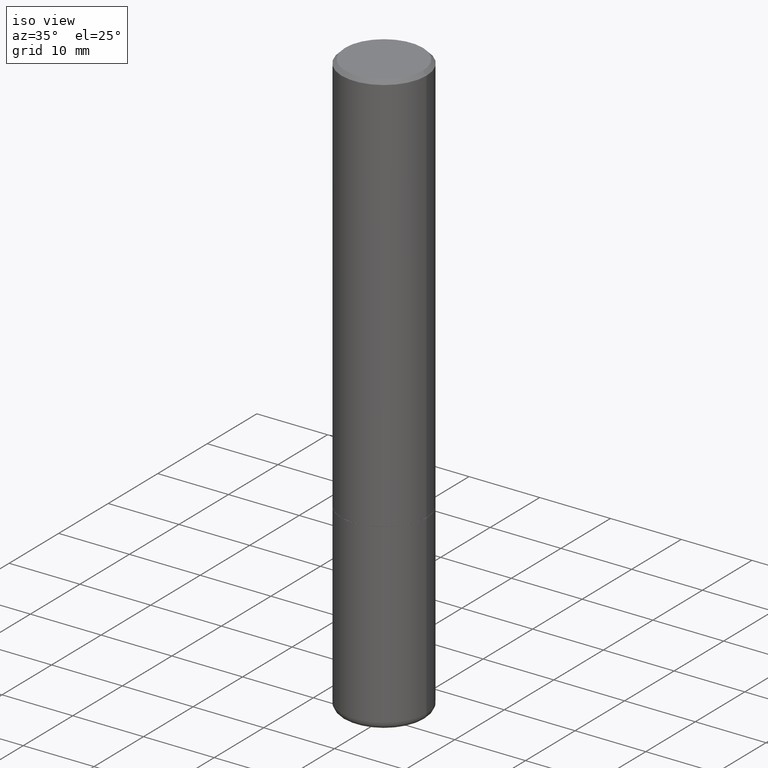
[diagram: clean part render]
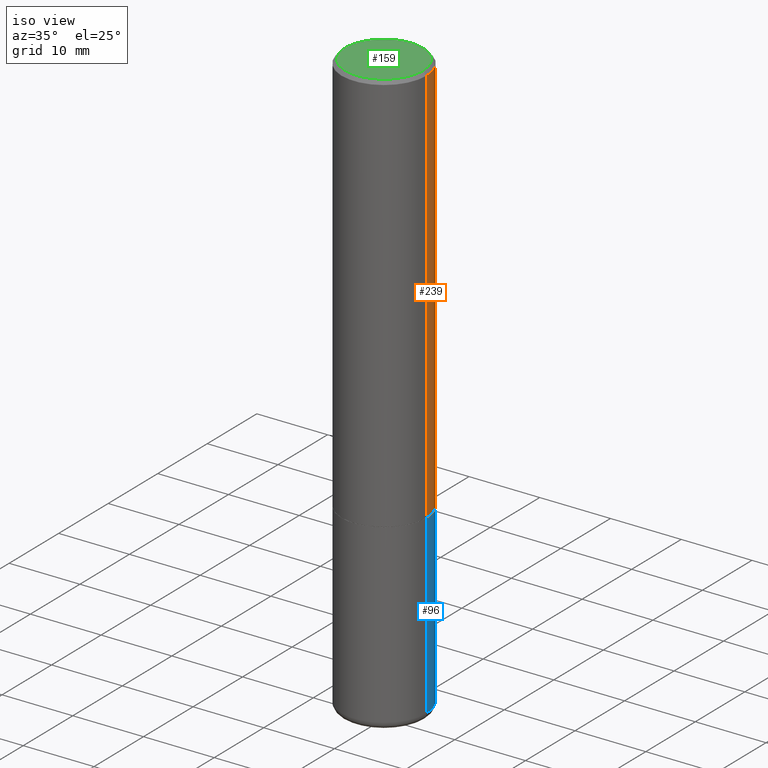
[diagram: same view with three faces highlighted in distinct colors, each labeled with its STEP entity id]
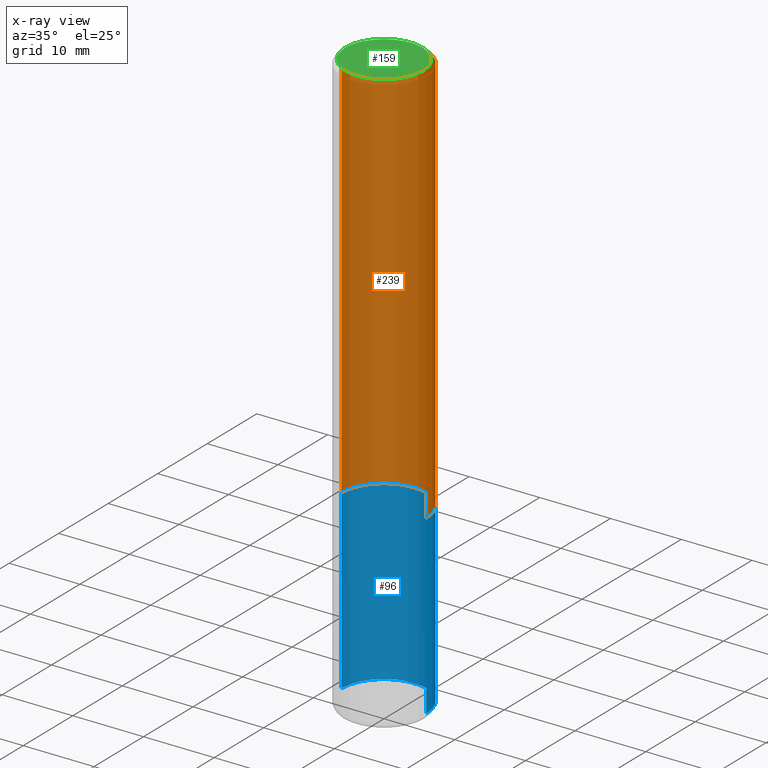
[diagram: x-ray of the same camera — body ghosted, the three highlighted faces saturated]
A machine part, iso view with three faces highlighted in distinct colors.
The next image is the same camera in x-ray (body ghosted, the three faces saturated) — at least one of them is partly hidden behind the body in this view.
Their STEP definitions:

[orange] entity #239 — the highlighted cylindrical surface (partial cylindrical patch) has radius 5.9995 mm, axis along (-0, 0, 1).
#22 = DIRECTION ( 'NONE',  ( -2.445468806185136597E-29, 3.491481338843145583E-15, 1.000000000000000000 ) ) ;
#37 = CARTESIAN_POINT ( 'NONE',  ( 5.485431079153880270E-29, -7.831741791159060910E-15, -2.243100000000000094 ) ) ;
#39 = DIRECTION ( 'NONE',  ( -2.445468806185136597E-29, 3.491481338843145583E-15, 1.000000000000000000 ) ) ;
#47 = CARTESIAN_POINT ( 'NONE',  ( 0.000000000000000000, 0.000000000000000000, 0.000000000000000000 ) ) ;
#64 = DIRECTION ( 'NONE',  ( -2.445468806185136597E-29, 3.491481338843145583E-15, 1.000000000000000000 ) ) ;
#71 = DIRECTION ( 'NONE',  ( -2.445468806185136877E-29, 3.491481338843145188E-15, 1.000000000000000000 ) ) ;
#84 = VERTEX_POINT ( 'NONE', #199 ) ;
#86 = CARTESIAN_POINT ( 'NONE',  ( -0.2362000000000002986, -2.272483767102600582E-15, -2.243100000000000094 ) ) ;
#89 = EDGE_CURVE ( 'NONE', #287, #84, #196, .T. ) ;
#99 = EDGE_CURVE ( 'NONE', #381, #84, #307, .T. ) ;
#105 = EDGE_CURVE ( 'NONE', #272, #287, #189, .T. ) ;
#110 = ORIENTED_EDGE ( 'NONE', *, *, #377, .F. ) ;
#122 = AXIS2_PLACEMENT_3D ( 'NONE', #166, #64, #326 ) ;
#128 = VECTOR ( 'NONE', #71, 39.37007874015748143 ) ;
#130 = DIRECTION ( 'NONE',  ( 1.000000000000000000, -6.982962677686269077E-15, 0.000000000000000000 ) ) ;
#148 = CARTESIAN_POINT ( 'NONE',  ( 0.2362000000000002709, -9.481117575628559013E-15, -2.243100000000000094 ) ) ;
#154 = CARTESIAN_POINT ( 'NONE',  ( 0.2361999999999999933, -1.690279253850498771E-15, -0.02000000000000005246 ) ) ;
#164 = AXIS2_PLACEMENT_3D ( 'NONE', #47, #22, #281 ) ;
#166 = CARTESIAN_POINT ( 'NONE',  ( 4.890937612370285420E-31, -6.982962677686308865E-17, -0.02000000000000005246 ) ) ;
#170 = CARTESIAN_POINT ( 'NONE',  ( -0.2362000000000001321, 1.678301941865357577E-15, -1.161852468318209457E-29 ) ) ;
#172 = ORIENTED_EDGE ( 'NONE', *, *, #89, .T. ) ;
#174 = AXIS2_PLACEMENT_3D ( 'NONE', #37, #39, #130 ) ;
#189 = CIRCLE ( 'NONE', #174, 0.2362000000000002709 ) ;
#196 = LINE ( 'NONE', #170, #128 ) ;
#199 = CARTESIAN_POINT ( 'NONE',  ( -0.2361999999999999933, 1.579546157692633030E-15, -0.02000000000000005246 ) ) ;
#215 = FACE_OUTER_BOUND ( 'NONE', #354, .T. ) ;
#236 = CYLINDRICAL_SURFACE ( 'NONE', #164, 0.2362000000000001321 ) ;
#239 = ADVANCED_FACE ( 'NONE', ( #215 ), #236, .T. ) ;
#272 = VERTEX_POINT ( 'NONE', #148 ) ;
#279 = DIRECTION ( 'NONE',  ( -2.445468806185136877E-29, 3.491481338843145188E-15, 1.000000000000000000 ) ) ;
#281 = DIRECTION ( 'NONE',  ( 1.000000000000000000, -6.982962677686266711E-15, 4.876176775795936353E-29 ) ) ;
#284 = VECTOR ( 'NONE', #279, 39.37007874015748143 ) ;
#287 = VERTEX_POINT ( 'NONE', #86 ) ;
#307 = CIRCLE ( 'NONE', #122, 0.2361999999999999933 ) ;
#326 = DIRECTION ( 'NONE',  ( 1.000000000000000000, -6.982962677686266711E-15, 0.000000000000000000 ) ) ;
#354 = EDGE_LOOP ( 'NONE', ( #410, #172, #376, #110 ) ) ;
#375 = CARTESIAN_POINT ( 'NONE',  ( 0.2362000000000001321, -1.649375784469497117E-15, 1.151752954443000789E-29 ) ) ;
#376 = ORIENTED_EDGE ( 'NONE', *, *, #99, .F. ) ;
#377 = EDGE_CURVE ( 'NONE', #272, #381, #399, .T. ) ;
#381 = VERTEX_POINT ( 'NONE', #154 ) ;
#399 = LINE ( 'NONE', #375, #284 ) ;
#410 = ORIENTED_EDGE ( 'NONE', *, *, #105, .T. ) ;

[blue] entity #96 — the highlighted cylindrical surface (partial cylindrical patch) has radius 5.9995 mm, axis along (-0, 0, 1).
#13 = DIRECTION ( 'NONE',  ( 1.000000000000000000, -6.982962677686269077E-15, 0.000000000000000000 ) ) ;
#29 = ORIENTED_EDGE ( 'NONE', *, *, #112, .T. ) ;
#40 = CYLINDRICAL_SURFACE ( 'NONE', #276, 0.2361999999999999933 ) ;
#48 = ORIENTED_EDGE ( 'NONE', *, *, #382, .F. ) ;
#50 = EDGE_LOOP ( 'NONE', ( #274, #29, #206, #48 ) ) ;
#61 = LINE ( 'NONE', #167, #208 ) ;
#74 = VERTEX_POINT ( 'NONE', #356 ) ;
#79 = EDGE_CURVE ( 'NONE', #74, #246, #311, .T. ) ;
#96 = ADVANCED_FACE ( 'NONE', ( #332 ), #40, .T. ) ;
#101 = DIRECTION ( 'NONE',  ( -2.445468806185136597E-29, 3.491481338843145583E-15, 1.000000000000000000 ) ) ;
#107 = LINE ( 'NONE', #309, #204 ) ;
#112 = EDGE_CURVE ( 'NONE', #246, #205, #61, .T. ) ;
#116 = CARTESIAN_POINT ( 'NONE',  ( 0.2361999999999999933, -9.484609056967400443E-15, -2.244100000000000428 ) ) ;
#167 = CARTESIAN_POINT ( 'NONE',  ( -0.2361999999999999933, 1.678301941865356591E-15, -1.161852468318208757E-29 ) ) ;
#202 = DIRECTION ( 'NONE',  ( -2.445468806185136877E-29, 3.491481338843145188E-15, 1.000000000000000000 ) ) ;
#204 = VECTOR ( 'NONE', #367, 39.37007874015748143 ) ;
#205 = VERTEX_POINT ( 'NONE', #362 ) ;
#206 = ORIENTED_EDGE ( 'NONE', *, *, #334, .F. ) ;
#208 = VECTOR ( 'NONE', #202, 39.37007874015748143 ) ;
#219 = DIRECTION ( 'NONE',  ( -2.445468806185136597E-29, 3.491481338843145583E-15, 1.000000000000000000 ) ) ;
#246 = VERTEX_POINT ( 'NONE', #310 ) ;
#248 = CIRCLE ( 'NONE', #300, 0.2361999999999999933 ) ;
#274 = ORIENTED_EDGE ( 'NONE', *, *, #79, .T. ) ;
#276 = AXIS2_PLACEMENT_3D ( 'NONE', #390, #330, #329 ) ;
#300 = AXIS2_PLACEMENT_3D ( 'NONE', #312, #219, #13 ) ;
#303 = CARTESIAN_POINT ( 'NONE',  ( 7.894706947007477118E-29, -1.127154920618732880E-14, -3.228299999999999947 ) ) ;
#309 = CARTESIAN_POINT ( 'NONE',  ( 0.2361999999999999933, -1.649375784469496131E-15, 1.151752954443000088E-29 ) ) ;
#310 = CARTESIAN_POINT ( 'NONE',  ( -0.2362000000000000210, -9.593247264321970832E-15, -3.228299999999999947 ) ) ;
#311 = CIRCLE ( 'NONE', #415, 0.2361999999999999933 ) ;
#312 = CARTESIAN_POINT ( 'NONE',  ( 5.487876547960065873E-29, -7.835233272497903917E-15, -2.244100000000000428 ) ) ;
#323 = VERTEX_POINT ( 'NONE', #116 ) ;
#329 = DIRECTION ( 'NONE',  ( 1.000000000000000000, -6.982962677686266711E-15, 4.876176775795936353E-29 ) ) ;
#330 = DIRECTION ( 'NONE',  ( -2.445468806185136597E-29, 3.491481338843145583E-15, 1.000000000000000000 ) ) ;
#332 = FACE_OUTER_BOUND ( 'NONE', #50, .T. ) ;
#334 = EDGE_CURVE ( 'NONE', #323, #205, #248, .T. ) ;
#355 = DIRECTION ( 'NONE',  ( 1.000000000000000000, -6.982962677686265133E-15, 0.000000000000000000 ) ) ;
#356 = CARTESIAN_POINT ( 'NONE',  ( 0.2362000000000000210, -1.292092499065682375E-14, -3.228299999999999947 ) ) ;
#362 = CARTESIAN_POINT ( 'NONE',  ( -0.2361999999999999933, -7.875089297477259967E-15, -2.244100000000000428 ) ) ;
#367 = DIRECTION ( 'NONE',  ( -2.445468806185136877E-29, 3.491481338843145188E-15, 1.000000000000000000 ) ) ;
#382 = EDGE_CURVE ( 'NONE', #74, #323, #107, .T. ) ;
#390 = CARTESIAN_POINT ( 'NONE',  ( 0.000000000000000000, 0.000000000000000000, 0.000000000000000000 ) ) ;
#415 = AXIS2_PLACEMENT_3D ( 'NONE', #303, #101, #355 ) ;

[green] entity #159 — the highlighted planar face has unit normal (0, -0, -1).
#9 = CARTESIAN_POINT ( 'NONE',  ( 0.2161999999999998368, -1.586759460484351002E-15, 1.451294246634248118E-16 ) ) ;
#34 = CARTESIAN_POINT ( 'NONE',  ( -3.549094808739746881E-45, 5.067166779293519988E-31, 1.451294246634139896E-16 ) ) ;
#43 = CARTESIAN_POINT ( 'NONE',  ( 1.509716530915769534E-15, 0.2161999999999998368, -6.822935531261805704E-16 ) ) ;
#56 = CIRCLE ( 'NONE', #378, 0.2161999999999998368 ) ;
#83 = CARTESIAN_POINT ( 'NONE',  ( -3.549094808739746881E-45, 5.067166779293519988E-31, 1.451294246634139896E-16 ) ) ;
#118 = DIRECTION ( 'NONE',  ( -2.445468806185136597E-29, 3.491481338843145583E-15, 1.000000000000000000 ) ) ;
#132 = DIRECTION ( 'NONE',  ( 1.000000000000000000, -6.982962677686266711E-15, 4.881916136609865378E-29 ) ) ;
#142 = EDGE_CURVE ( 'NONE', #146, #304, #216, .T. ) ;
#145 = DIRECTION ( 'NONE',  ( 1.000000000000000000, -6.982962677686266711E-15, 4.881916136609865378E-29 ) ) ;
#146 = VERTEX_POINT ( 'NONE', #9 ) ;
#159 = ADVANCED_FACE ( 'NONE', ( #394 ), #259, .F. ) ;
#179 = AXIS2_PLACEMENT_3D ( 'NONE', #43, #230, #231 ) ;
#182 = CARTESIAN_POINT ( 'NONE',  ( -0.2161999999999998368, 1.544631344304201775E-15, 1.451294246634033154E-16 ) ) ;
#216 = CIRCLE ( 'NONE', #232, 0.2161999999999998368 ) ;
#230 = DIRECTION ( 'NONE',  ( 2.438088387897960049E-29, -3.491481338843145188E-15, -1.000000000000000000 ) ) ;
#231 = DIRECTION ( 'NONE',  ( -1.000000000000000000, 6.982962677686265922E-15, -4.876176775795935793E-29 ) ) ;
#232 = AXIS2_PLACEMENT_3D ( 'NONE', #34, #297, #132 ) ;
#238 = EDGE_LOOP ( 'NONE', ( #244, #406 ) ) ;
#244 = ORIENTED_EDGE ( 'NONE', *, *, #295, .T. ) ;
#259 = PLANE ( 'NONE',  #179 ) ;
#295 = EDGE_CURVE ( 'NONE', #304, #146, #56, .T. ) ;
#297 = DIRECTION ( 'NONE',  ( -2.445468806185136597E-29, 3.491481338843145583E-15, 1.000000000000000000 ) ) ;
#304 = VERTEX_POINT ( 'NONE', #182 ) ;
#378 = AXIS2_PLACEMENT_3D ( 'NONE', #83, #118, #145 ) ;
#394 = FACE_OUTER_BOUND ( 'NONE', #238, .T. ) ;
#406 = ORIENTED_EDGE ( 'NONE', *, *, #142, .T. ) ;